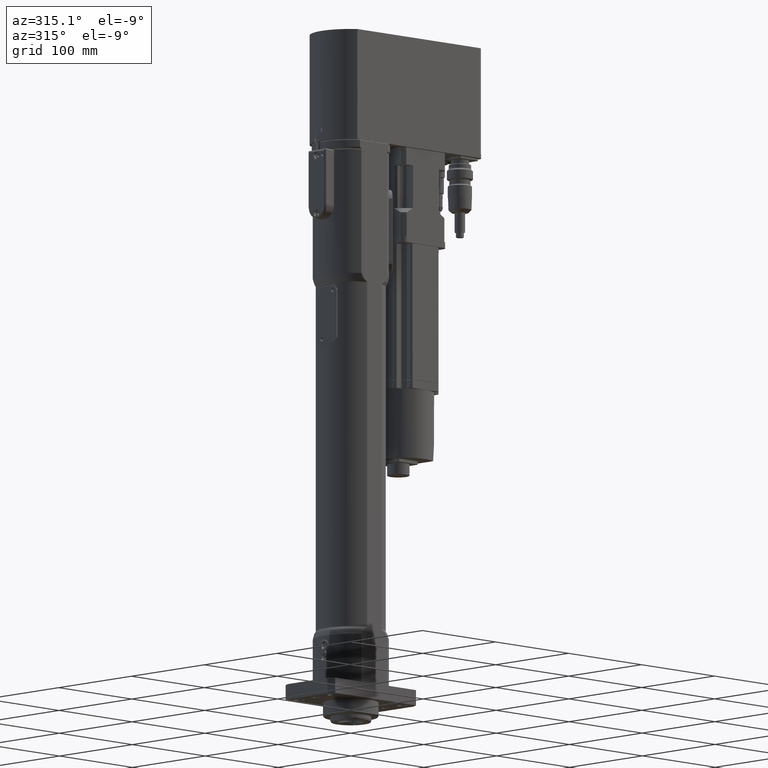
[diagram: clean part render]
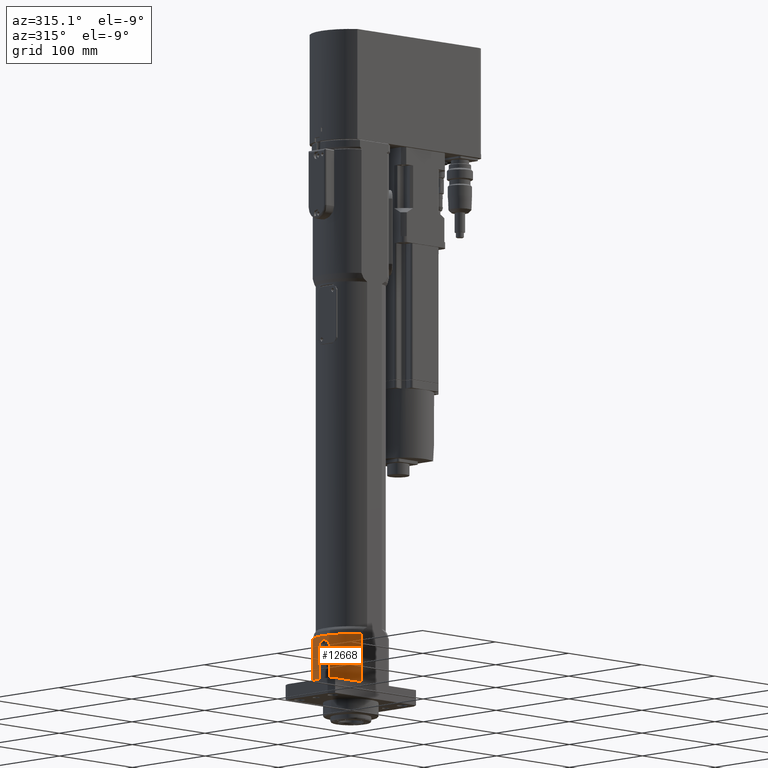
[diagram: same view with one face highlighted and labeled with its STEP entity id]
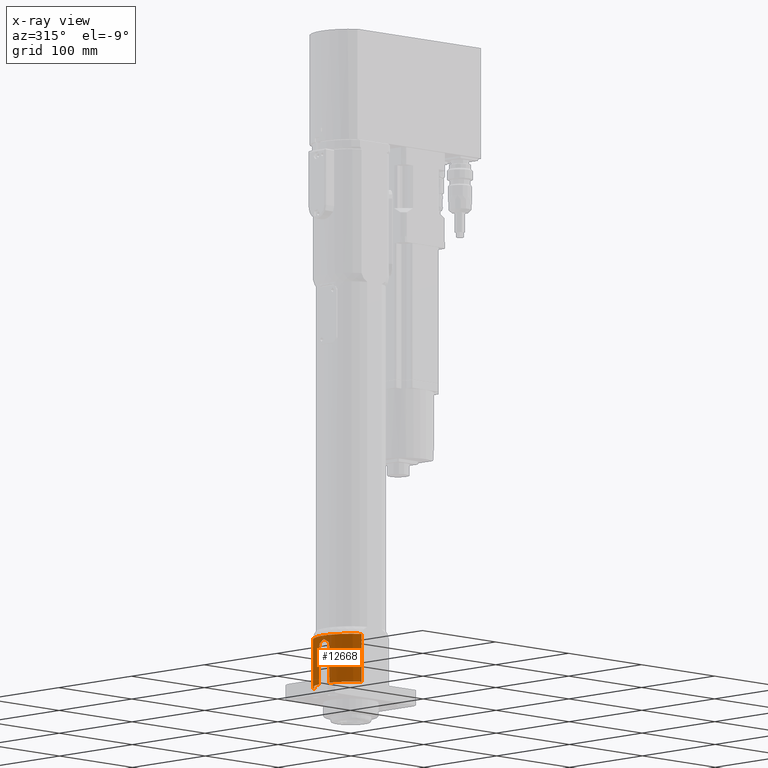
[diagram: x-ray of the same camera — body ghosted, the highlighted face saturated]
A machine part, auxiliary view. The second image highlights one B-rep face of the part: STEP entity #12668.
The next image is the same camera in x-ray: the body ghosted, the highlighted face saturated — about 0% of this face is hidden behind the body in this view.
In plain terms, the highlighted cylindrical surface (partial cylindrical patch) has radius 37 mm, axis along (-0, 0, 1).
Its self-contained STEP definition (entity closure, byte-faithful):
#479=LINE('',#21726,#1415);
#483=LINE('',#21735,#1419);
#528=LINE('',#21878,#1464);
#950=LINE('',#23569,#1886);
#1017=LINE('',#23962,#1953);
#1019=LINE('',#23979,#1955);
#1415=VECTOR('',#15461,35.5);
#1419=VECTOR('',#15467,35.5000000000001);
#1464=VECTOR('',#15598,0.999999999999952);
#1886=VECTOR('',#17188,0.999999999999996);
#1953=VECTOR('',#17429,47.1243556529821);
#1955=VECTOR('',#17435,47.1243556529821);
#2252=B_SPLINE_CURVE_WITH_KNOTS('',3,(#21743,#21744,#21745,#21746,#21747,
#21748),.UNSPECIFIED.,.F.,.F.,(4,2,4),(0.,0.264372898106588,0.350768995096671),
 .UNSPECIFIED.);
#2253=B_SPLINE_CURVE_WITH_KNOTS('',3,(#21752,#21753,#21754,#21755,#21756,
#21757),.UNSPECIFIED.,.F.,.F.,(4,2,4),(1.76416693490698,1.85056303189698,
2.11493593000357),.UNSPECIFIED.);
#2264=B_SPLINE_CURVE_WITH_KNOTS('',3,(#23554,#23555,#23556,#23557,#23558,
#23559,#23560,#23561,#23562,#23563,#23564,#23565,#23566,#23567),
 .UNSPECIFIED.,.F.,.F.,(4,2,2,2,2,2,4),(-1.76416693490684,-1.58619013379039,
-1.32182904939609,-1.05746796500178,-0.79310688060748,-0.528745796213177,
-0.350768995096805),.UNSPECIFIED.);
#3451=FACE_OUTER_BOUND('',#4366,.T.);
#4366=EDGE_LOOP('',(#10847,#10848,#10849,#10850,#10851,#10852,#10853,#10854,
#10855,#10856,#10857,#10858));
#5031=CIRCLE('',#13958,37.);
#5033=CIRCLE('',#13960,37.);
#5066=CIRCLE('',#14051,37.);
#5581=VERTEX_POINT('',#21724);
#5582=VERTEX_POINT('',#21725);
#5585=VERTEX_POINT('',#21733);
#5586=VERTEX_POINT('',#21734);
#5589=VERTEX_POINT('',#21742);
#5590=VERTEX_POINT('',#21751);
#5629=VERTEX_POINT('',#21877);
#6098=VERTEX_POINT('',#23542);
#6099=VERTEX_POINT('',#23544);
#6102=VERTEX_POINT('',#23550);
#6177=VERTEX_POINT('',#23961);
#6178=VERTEX_POINT('',#23977);
#6890=EDGE_CURVE('',#5581,#5582,#479,.T.);
#6894=EDGE_CURVE('',#5585,#5586,#483,.T.);
#6898=EDGE_CURVE('',#5586,#5589,#2252,.T.);
#6900=EDGE_CURVE('',#5590,#5581,#2253,.T.);
#6957=EDGE_CURVE('',#5629,#5585,#528,.T.);
#7684=EDGE_CURVE('',#5629,#6099,#5031,.T.);
#7688=EDGE_CURVE('',#6102,#6098,#5033,.T.);
#7689=EDGE_CURVE('',#5589,#5590,#2264,.F.);
#7690=EDGE_CURVE('',#5582,#6098,#950,.T.);
#7803=EDGE_CURVE('',#6177,#6099,#1017,.T.);
#7806=EDGE_CURVE('',#6177,#6178,#5066,.T.);
#7807=EDGE_CURVE('',#6102,#6178,#1019,.T.);
#10847=ORIENTED_EDGE('',*,*,#7806,.F.);
#10848=ORIENTED_EDGE('',*,*,#7803,.T.);
#10849=ORIENTED_EDGE('',*,*,#7684,.F.);
#10850=ORIENTED_EDGE('',*,*,#6957,.T.);
#10851=ORIENTED_EDGE('',*,*,#6894,.T.);
#10852=ORIENTED_EDGE('',*,*,#6898,.T.);
#10853=ORIENTED_EDGE('',*,*,#7689,.T.);
#10854=ORIENTED_EDGE('',*,*,#6900,.T.);
#10855=ORIENTED_EDGE('',*,*,#6890,.T.);
#10856=ORIENTED_EDGE('',*,*,#7690,.T.);
#10857=ORIENTED_EDGE('',*,*,#7688,.F.);
#10858=ORIENTED_EDGE('',*,*,#7807,.T.);
#11707=CYLINDRICAL_SURFACE('',#14050,37.);
#12668=ADVANCED_FACE('',(#3451),#11707,.T.);
#13958=AXIS2_PLACEMENT_3D('',#23545,#17176,#17177);
#13960=AXIS2_PLACEMENT_3D('',#23552,#17182,#17183);
#14050=AXIS2_PLACEMENT_3D('',#23976,#17431,#17432);
#14051=AXIS2_PLACEMENT_3D('',#23978,#17433,#17434);
#15461=DIRECTION('',(0.,0.,-1.));
#15467=DIRECTION('',(0.,0.,1.));
#15598=DIRECTION('',(0.,0.,1.));
#17176=DIRECTION('center_axis',(0.,0.,-1.));
#17177=DIRECTION('ref_axis',(-1.,0.,0.));
#17182=DIRECTION('center_axis',(0.,0.,-1.));
#17183=DIRECTION('ref_axis',(-1.,0.,0.));
#17188=DIRECTION('',(0.,0.,-1.));
#17429=DIRECTION('',(0.,0.,-1.));
#17431=DIRECTION('center_axis',(0.,0.,1.));
#17432=DIRECTION('ref_axis',(-1.,0.,0.));
#17433=DIRECTION('center_axis',(0.,0.,1.));
#17434=DIRECTION('ref_axis',(1.,-7.6571373978539E-16,0.));
#17435=DIRECTION('',(0.,0.,1.));
#21724=CARTESIAN_POINT('',(36.3318042491699,7.00000000000005,-34.5));
#21725=CARTESIAN_POINT('',(36.3318042491699,7.,-70.));
#21726=CARTESIAN_POINT('',(36.3318042491699,7.00000000000005,-71.));
#21733=CARTESIAN_POINT('',(36.3318042491699,-6.99999999999996,-70.0000000000001));
#21734=CARTESIAN_POINT('',(36.3318042491699,-6.99999999999995,-34.5));
#21735=CARTESIAN_POINT('',(36.3318042491699,-6.99999999999996,-71.));
#21742=CARTESIAN_POINT('',(36.5000000000018,-6.06217782647604,-30.9999999999752));
#21743=CARTESIAN_POINT('Ctrl Pts',(36.3318042491699,-7.,-34.5));
#21744=CARTESIAN_POINT('Ctrl Pts',(36.3318042491699,-7.,-33.6187570063114));
#21745=CARTESIAN_POINT('Ctrl Pts',(36.3671886074386,-6.82344748816038,-32.6802681897111));
#21746=CARTESIAN_POINT('Ctrl Pts',(36.4513785713198,-6.34910072931613,-31.5365687729882));
#21747=CARTESIAN_POINT('Ctrl Pts',(36.4748245537481,-6.21375764062672,-31.2625439394823));
#21748=CARTESIAN_POINT('Ctrl Pts',(36.5000000000024,-6.0621778264766,-30.9999999999749));
#21751=CARTESIAN_POINT('',(36.5000000000017,6.06217782647653,-30.9999999999759));
#21752=CARTESIAN_POINT('Ctrl Pts',(36.5000000000023,6.06217782647703,-30.9999999999757));
#21753=CARTESIAN_POINT('Ctrl Pts',(36.474824553748,6.21375764062697,-31.2625439394828));
#21754=CARTESIAN_POINT('Ctrl Pts',(36.4513785713198,6.34910072931624,-31.5365687729885));
#21755=CARTESIAN_POINT('Ctrl Pts',(36.3671886074386,6.82344748816038,-32.6802681897111));
#21756=CARTESIAN_POINT('Ctrl Pts',(36.3318042491699,7.,-33.6187570063114));
#21757=CARTESIAN_POINT('Ctrl Pts',(36.3318042491699,7.,-34.5));
#21877=CARTESIAN_POINT('',(36.3318042491699,-6.99999999999996,-71.));
#21878=CARTESIAN_POINT('',(36.3318042491699,-6.99999999999996,-71.));
#23542=CARTESIAN_POINT('',(36.3318042491699,7.00000000000005,-71.));
#23544=CARTESIAN_POINT('',(17.6847391838273,-32.5,-71.));
#23545=CARTESIAN_POINT('Origin',(0.,0.,-71.));
#23550=CARTESIAN_POINT('',(17.6847391838274,32.5,-71.));
#23552=CARTESIAN_POINT('Origin',(0.,0.,-71.));
#23554=CARTESIAN_POINT('Ctrl Pts',(36.5000000000025,6.06217782647633,-30.9999999999744));
#23555=CARTESIAN_POINT('Ctrl Pts',(36.5518616644424,5.7499219332574,-30.4591569279617));
#23556=CARTESIAN_POINT('Ctrl Pts',(36.6110526463371,5.36734472044513,-29.9678497838334));
#23557=CARTESIAN_POINT('Ctrl Pts',(36.7511568003497,4.32946178094045,-28.9299668443287));
#23558=CARTESIAN_POINT('Ctrl Pts',(36.8400440625069,3.54374917173933,-28.3915842305943));
#23559=CARTESIAN_POINT('Ctrl Pts',(36.9653306735113,1.8197068107329,-27.6765427448171));
#23560=CARTESIAN_POINT('Ctrl Pts',(37.,0.881203614647726,-27.5));
#23561=CARTESIAN_POINT('Ctrl Pts',(37.,-0.88120361464763,-27.5));
#23562=CARTESIAN_POINT('Ctrl Pts',(36.9653306735113,-1.8197068107328,-27.6765427448171));
#23563=CARTESIAN_POINT('Ctrl Pts',(36.8400440625069,-3.54374917173923,-28.3915842305943));
#23564=CARTESIAN_POINT('Ctrl Pts',(36.7511568003498,-4.32946178094035,-28.9299668443287));
#23565=CARTESIAN_POINT('Ctrl Pts',(36.6110526463371,-5.36734472044485,-29.9678497838332));
#23566=CARTESIAN_POINT('Ctrl Pts',(36.5518616644425,-5.74992193325697,-30.4591569279613));
#23567=CARTESIAN_POINT('Ctrl Pts',(36.5000000000025,-6.06217782647584,-30.9999999999737));
#23569=CARTESIAN_POINT('',(36.3318042491699,7.00000000000005,-71.));
#23961=CARTESIAN_POINT('',(17.6847391838274,-32.5,-23.8756443470179));
#23962=CARTESIAN_POINT('',(17.6847391838274,-32.5,-71.));
#23976=CARTESIAN_POINT('Origin',(0.,0.,-71.));
#23977=CARTESIAN_POINT('',(17.6847391838274,32.5,-23.8756443470179));
#23978=CARTESIAN_POINT('Origin',(0.,0.,-23.8756443470179));
#23979=CARTESIAN_POINT('',(17.6847391838274,32.5,-71.));